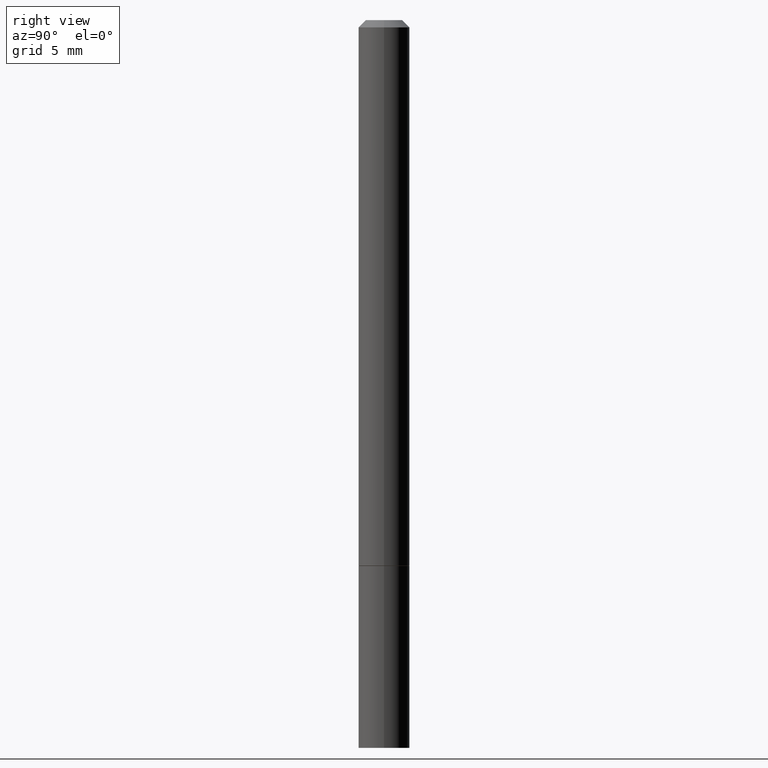
[diagram: clean part render]
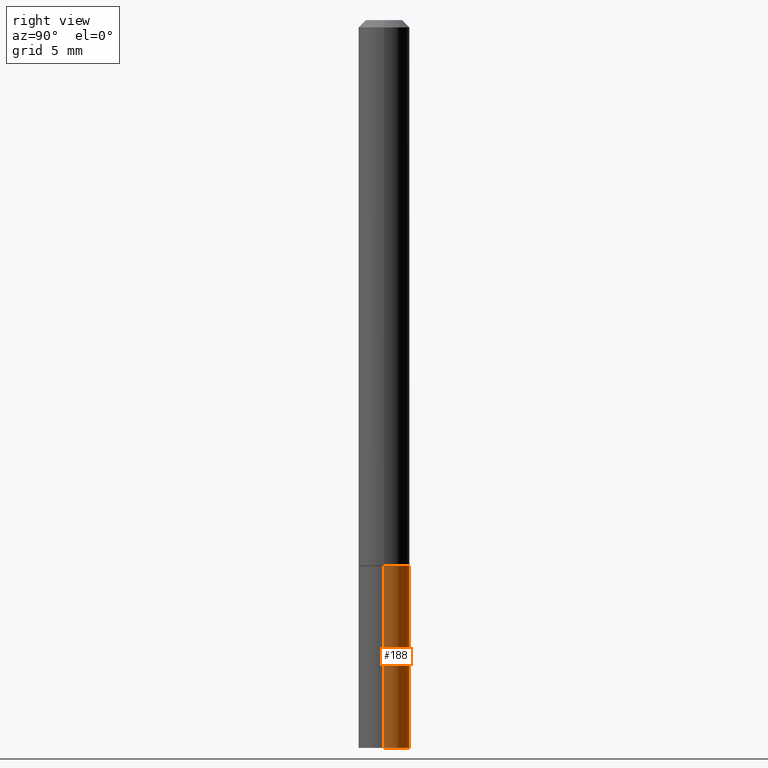
[diagram: same view with one face highlighted and labeled with its STEP entity id]
A machine part, right view. The second image highlights one B-rep face of the part: STEP entity #188.
In plain terms, the highlighted cylindrical surface (edge-blend (fillet) strip) has radius 1.7856 mm, axis along (-0, 0, 1).
Its self-contained STEP definition (entity closure, byte-faithful):
#11 = VERTEX_POINT ( 'NONE', #287 ) ;
#18 = AXIS2_PLACEMENT_3D ( 'NONE', #296, #51, #58 ) ;
#24 = CARTESIAN_POINT ( 'NONE',  ( 0.07030000000000000138, -4.909022762413445529E-16, 3.427952273384543137E-30 ) ) ;
#29 = DIRECTION ( 'NONE',  ( -2.445468806185136597E-29, 3.491481338843145583E-15, 1.000000000000000000 ) ) ;
#51 = DIRECTION ( 'NONE',  ( -2.445468806185136597E-29, 3.491481338843145583E-15, 1.000000000000000000 ) ) ;
#55 = CIRCLE ( 'NONE', #18, 0.07030000000000000138 ) ;
#58 = DIRECTION ( 'NONE',  ( 1.000000000000000000, -6.982962677686265133E-15, 0.000000000000000000 ) ) ;
#60 = CARTESIAN_POINT ( 'NONE',  ( -0.07030000000000000138, -5.610580799736154033E-15, -1.500000000000000222 ) ) ;
#71 = CARTESIAN_POINT ( 'NONE',  ( -0.07030000000000000138, 4.995115432393504404E-16, -3.458011368449198869E-30 ) ) ;
#84 = VECTOR ( 'NONE', #174, 39.37007874015748143 ) ;
#88 = EDGE_CURVE ( 'NONE', #11, #141, #253, .T. ) ;
#97 = EDGE_CURVE ( 'NONE', #141, #377, #283, .T. ) ;
#109 = VERTEX_POINT ( 'NONE', #286 ) ;
#110 = FACE_OUTER_BOUND ( 'NONE', #112, .T. ) ;
#112 = EDGE_LOOP ( 'NONE', ( #340, #325, #317, #150 ) ) ;
#114 = LINE ( 'NONE', #24, #84 ) ;
#141 = VERTEX_POINT ( 'NONE', #348 ) ;
#150 = ORIENTED_EDGE ( 'NONE', *, *, #259, .F. ) ;
#174 = DIRECTION ( 'NONE',  ( -2.445468806185136877E-29, 3.491481338843145188E-15, 1.000000000000000000 ) ) ;
#179 = EDGE_CURVE ( 'NONE', #109, #377, #55, .T. ) ;
#180 = CARTESIAN_POINT ( 'NONE',  ( 0.000000000000000000, 0.000000000000000000, 0.000000000000000000 ) ) ;
#183 = DIRECTION ( 'NONE',  ( -2.445468806185136597E-29, 3.491481338843145583E-15, 1.000000000000000000 ) ) ;
#186 = VECTOR ( 'NONE', #371, 39.37007874015748143 ) ;
#188 = ADVANCED_FACE ( 'NONE', ( #110 ), #264, .T. ) ;
#253 = CIRCLE ( 'NONE', #312, 0.07030000000000000138 ) ;
#259 = EDGE_CURVE ( 'NONE', #11, #109, #114, .T. ) ;
#264 = CYLINDRICAL_SURFACE ( 'NONE', #375, 0.07030000000000000138 ) ;
#270 = CARTESIAN_POINT ( 'NONE',  ( 4.890937612370273194E-29, -6.982962677686291165E-15, -2.000000000000000000 ) ) ;
#283 = LINE ( 'NONE', #71, #186 ) ;
#286 = CARTESIAN_POINT ( 'NONE',  ( 0.07030000000000000138, -5.728124284506063124E-15, -1.500000000000000222 ) ) ;
#287 = CARTESIAN_POINT ( 'NONE',  ( 0.07030000000000004301, -7.465255686929629633E-15, -2.000000000000000000 ) ) ;
#296 = CARTESIAN_POINT ( 'NONE',  ( 3.668203209277704895E-29, -5.237222008264718177E-15, -1.500000000000000222 ) ) ;
#308 = DIRECTION ( 'NONE',  ( 1.000000000000000000, -6.982962677686265133E-15, 0.000000000000000000 ) ) ;
#312 = AXIS2_PLACEMENT_3D ( 'NONE', #270, #183, #308 ) ;
#317 = ORIENTED_EDGE ( 'NONE', *, *, #179, .F. ) ;
#325 = ORIENTED_EDGE ( 'NONE', *, *, #97, .T. ) ;
#332 = DIRECTION ( 'NONE',  ( 1.000000000000000000, -6.982962677686266711E-15, 4.876176775795936353E-29 ) ) ;
#340 = ORIENTED_EDGE ( 'NONE', *, *, #88, .T. ) ;
#348 = CARTESIAN_POINT ( 'NONE',  ( -0.07030000000000004301, -6.492060401444947007E-15, -2.000000000000000000 ) ) ;
#371 = DIRECTION ( 'NONE',  ( -2.445468806185136877E-29, 3.491481338843145188E-15, 1.000000000000000000 ) ) ;
#375 = AXIS2_PLACEMENT_3D ( 'NONE', #180, #29, #332 ) ;
#377 = VERTEX_POINT ( 'NONE', #60 ) ;